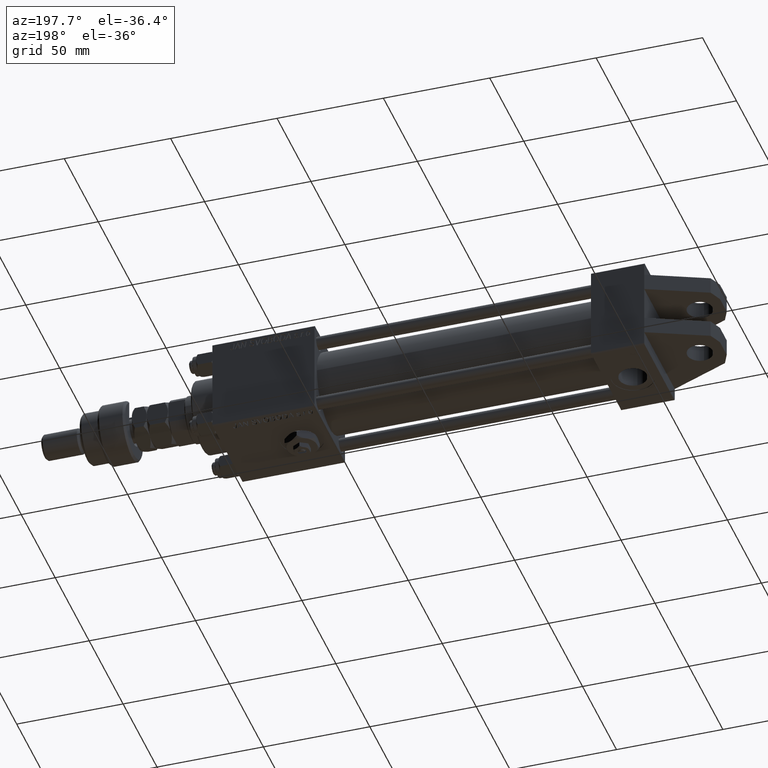
[diagram: clean part render]
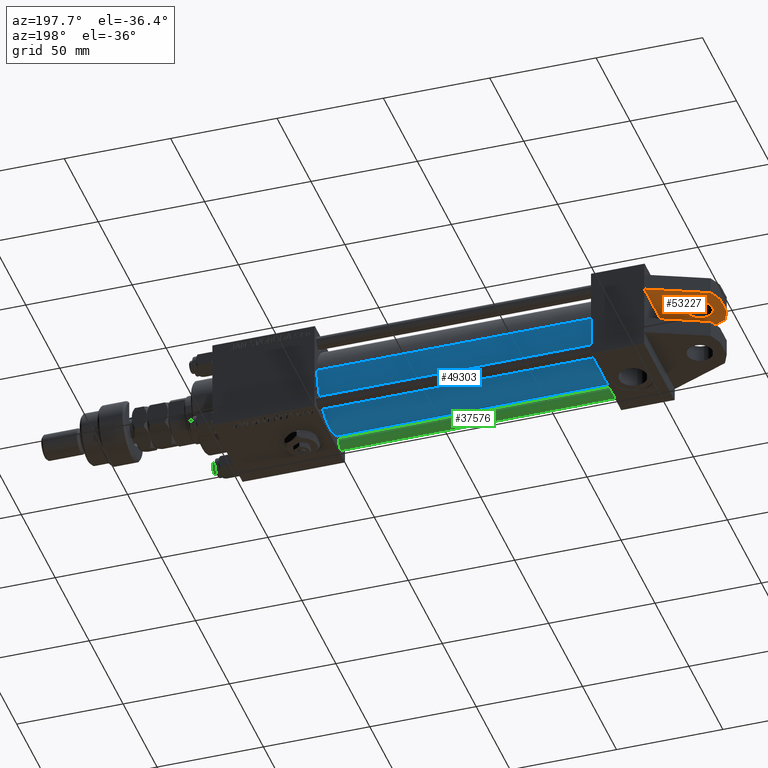
[diagram: same view with three faces highlighted in distinct colors, each labeled with its STEP entity id]
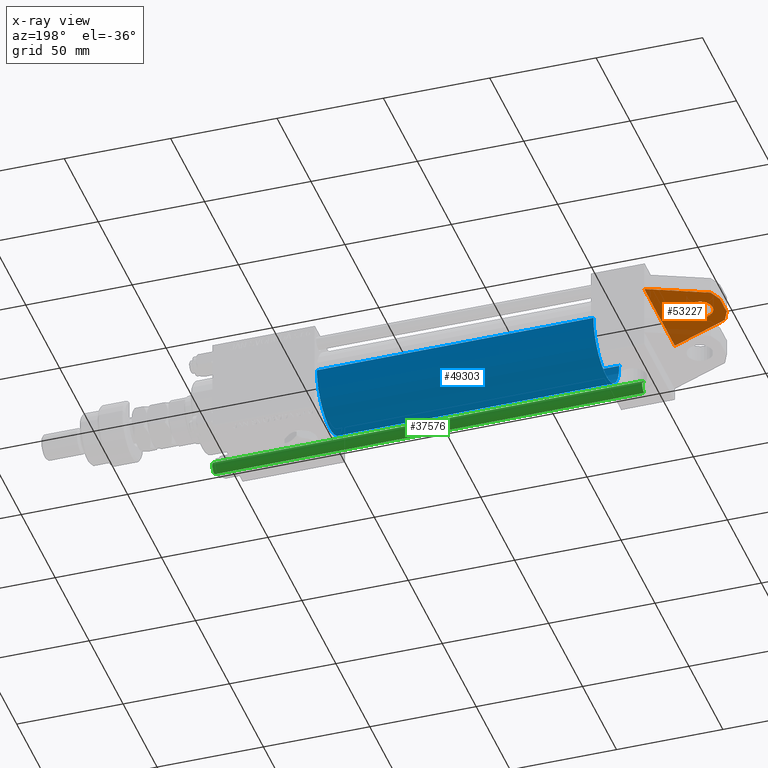
[diagram: x-ray of the same camera — body ghosted, the three highlighted faces saturated]
A machine part, auxiliary view with three faces highlighted in distinct colors.
The next image is the same camera in x-ray (body ghosted, the three faces saturated) — at least one of them is partly hidden behind the body in this view.
Their STEP definitions:

[orange] entity #53227 — the highlighted planar face has unit normal (0, 0, 1).
#643 = VERTEX_POINT ( 'NONE', #34201 ) ;
#2232 = EDGE_CURVE ( 'NONE', #52682, #36499, #18912, .T. ) ;
#2988 = EDGE_CURVE ( 'NONE', #39241, #23207, #52233, .T. ) ;
#3514 = DIRECTION ( 'NONE',  ( -0.9186825547302631678, 0.000000000000000000, 0.3949966628141013958 ) ) ;
#3778 = DIRECTION ( 'NONE',  ( 0.000000000000000000, 0.000000000000000000, 1.000000000000000000 ) ) ;
#4519 = EDGE_CURVE ( 'NONE', #52692, #52682, #32437, .T. ) ;
#4686 = AXIS2_PLACEMENT_3D ( 'NONE', #9974, #26803, #48013 ) ;
#6557 = VECTOR ( 'NONE', #3514, 1000.000000000000227 ) ;
#6929 = VECTOR ( 'NONE', #50143, 1000.000000000000000 ) ;
#7552 = CARTESIAN_POINT ( 'NONE',  ( -27.49177119113045720, -8.000000000000000000, 10.83363422253716735 ) ) ;
#7961 = CARTESIAN_POINT ( 'NONE',  ( -30.00000000000000000, -8.000000000000000000, 4.999999999999996447 ) ) ;
#7992 = EDGE_CURVE ( 'NONE', #29401, #643, #33167, .T. ) ;
#8341 = VERTEX_POINT ( 'NONE', #40846 ) ;
#8880 = FACE_OUTER_BOUND ( 'NONE', #45491, .T. ) ;
#9051 = DIRECTION ( 'NONE',  ( 0.000000000000000000, 0.000000000000000000, 1.000000000000000000 ) ) ;
#9974 = CARTESIAN_POINT ( 'NONE',  ( -19.00000000000000000, -8.000000000000000000, -3.469446951953614189E-15 ) ) ;
#10729 = CARTESIAN_POINT ( 'NONE',  ( 0.000000000000000000, -8.000000000000000000, -22.50000000000000711 ) ) ;
#11311 = CARTESIAN_POINT ( 'NONE',  ( -19.00000000000000000, -8.000000000000000000, -6.000000000000004441 ) ) ;
#11477 = EDGE_LOOP ( 'NONE', ( #53320, #29204 ) ) ;
#11628 = CARTESIAN_POINT ( 'NONE',  ( -30.00000000000000000, -8.000000000000000000, -5.000000000000003553 ) ) ;
#12560 = VECTOR ( 'NONE', #48419, 1000.000000000000000 ) ;
#12973 = DIRECTION ( 'NONE',  ( 0.000000000000000000, 0.000000000000000000, -1.000000000000000000 ) ) ;
#14685 = VECTOR ( 'NONE', #12973, 1000.000000000000000 ) ;
#15959 = ORIENTED_EDGE ( 'NONE', *, *, #7992, .T. ) ;
#16973 = CARTESIAN_POINT ( 'NONE',  ( -27.49177119113045720, -8.000000000000000000, 10.83363422253716735 ) ) ;
#17158 = CARTESIAN_POINT ( 'NONE',  ( 0.000000000000000000, -8.000000000000000000, 0.000000000000000000 ) ) ;
#17202 = ORIENTED_EDGE ( 'NONE', *, *, #4519, .T. ) ;
#17978 = ORIENTED_EDGE ( 'NONE', *, *, #2232, .T. ) ;
#18912 = LINE ( 'NONE', #27752, #12560 ) ;
#19846 = VECTOR ( 'NONE', #28242, 999.9999999999998863 ) ;
#20424 = AXIS2_PLACEMENT_3D ( 'NONE', #17158, #43051, #21826 ) ;
#21826 = DIRECTION ( 'NONE',  ( 0.000000000000000000, 0.000000000000000000, 1.000000000000000000 ) ) ;
#23207 = VERTEX_POINT ( 'NONE', #11311 ) ;
#23639 = ORIENTED_EDGE ( 'NONE', *, *, #42728, .T. ) ;
#25086 = AXIS2_PLACEMENT_3D ( 'NONE', #29732, #51502, #9051 ) ;
#26255 = PLANE ( 'NONE',  #20424 ) ;
#26803 = DIRECTION ( 'NONE',  ( -0.000000000000000000, 1.000000000000000000, -0.000000000000000000 ) ) ;
#27752 = CARTESIAN_POINT ( 'NONE',  ( -30.00000000000000000, -8.000000000000000000, -5.000000000000003553 ) ) ;
#28221 = EDGE_CURVE ( 'NONE', #36499, #8341, #32985, .T. ) ;
#28242 = DIRECTION ( 'NONE',  ( 0.9205433724492674274, 0.000000000000000000, 0.3906403709804319724 ) ) ;
#28921 = LINE ( 'NONE', #7961, #6929 ) ;
#29204 = ORIENTED_EDGE ( 'NONE', *, *, #29992, .F. ) ;
#29401 = VERTEX_POINT ( 'NONE', #16973 ) ;
#29732 = CARTESIAN_POINT ( 'NONE',  ( -19.00000000000000000, -8.000000000000000000, -3.469446951953614189E-15 ) ) ;
#29992 = EDGE_CURVE ( 'NONE', #23207, #39241, #49711, .T. ) ;
#30079 = ORIENTED_EDGE ( 'NONE', *, *, #35716, .T. ) ;
#30310 = CARTESIAN_POINT ( 'NONE',  ( 0.000000000000000000, -8.000000000000000000, 22.50000000000000000 ) ) ;
#32437 = LINE ( 'NONE', #48738, #6557 ) ;
#32985 = LINE ( 'NONE', #49822, #48772 ) ;
#33167 = LINE ( 'NONE', #7552, #19846 ) ;
#33952 = FACE_BOUND ( 'NONE', #11477, .T. ) ;
#34201 = CARTESIAN_POINT ( 'NONE',  ( 0.000000000000000000, -8.000000000000000000, 22.50000000000000000 ) ) ;
#35716 = EDGE_CURVE ( 'NONE', #643, #52692, #50735, .T. ) ;
#36499 = VERTEX_POINT ( 'NONE', #11628 ) ;
#39241 = VERTEX_POINT ( 'NONE', #40133 ) ;
#39670 = CARTESIAN_POINT ( 'NONE',  ( -27.31637403794659136, -8.000000000000000000, -10.75505444768274543 ) ) ;
#40133 = CARTESIAN_POINT ( 'NONE',  ( -19.00000000000000000, -8.000000000000000000, 5.999999999999997335 ) ) ;
#40846 = CARTESIAN_POINT ( 'NONE',  ( -30.00000000000000000, -8.000000000000000000, 4.999999999999996447 ) ) ;
#42728 = EDGE_CURVE ( 'NONE', #8341, #29401, #28921, .T. ) ;
#43051 = DIRECTION ( 'NONE',  ( 0.000000000000000000, -1.000000000000000000, 0.000000000000000000 ) ) ;
#45491 = EDGE_LOOP ( 'NONE', ( #23639, #15959, #30079, #17202, #17978, #50019 ) ) ;
#48013 = DIRECTION ( 'NONE',  ( 0.000000000000000000, 0.000000000000000000, 1.000000000000000000 ) ) ;
#48419 = DIRECTION ( 'NONE',  ( -0.4226182617406942232, 0.000000000000000000, 0.9063077870366523792 ) ) ;
#48738 = CARTESIAN_POINT ( 'NONE',  ( -27.31637403794659136, -8.000000000000000000, -10.75505444768274543 ) ) ;
#48772 = VECTOR ( 'NONE', #3778, 1000.000000000000000 ) ;
#49711 = CIRCLE ( 'NONE', #25086, 6.000000000000000888 ) ;
#49822 = CARTESIAN_POINT ( 'NONE',  ( -30.00000000000000000, -8.000000000000000000, -5.000000000000003553 ) ) ;
#50019 = ORIENTED_EDGE ( 'NONE', *, *, #28221, .T. ) ;
#50143 = DIRECTION ( 'NONE',  ( 0.3949966628141011737, 0.000000000000000000, 0.9186825547302632788 ) ) ;
#50735 = LINE ( 'NONE', #30310, #14685 ) ;
#51502 = DIRECTION ( 'NONE',  ( -0.000000000000000000, 1.000000000000000000, -0.000000000000000000 ) ) ;
#52233 = CIRCLE ( 'NONE', #4686, 6.000000000000000888 ) ;
#52682 = VERTEX_POINT ( 'NONE', #39670 ) ;
#52692 = VERTEX_POINT ( 'NONE', #10729 ) ;
#53227 = ADVANCED_FACE ( 'NONE', ( #33952, #8880 ), #26255, .F. ) ;
#53320 = ORIENTED_EDGE ( 'NONE', *, *, #2988, .F. ) ;

[blue] entity #49303 — the highlighted cylindrical surface (partial cylindrical patch) has radius 19 mm, axis along (-1, -0, 0).
#1587 = VERTEX_POINT ( 'NONE', #14924 ) ;
#2381 = DIRECTION ( 'NONE',  ( -1.000000000000000000, -0.000000000000000000, -0.000000000000000000 ) ) ;
#5983 = LINE ( 'NONE', #10108, #21320 ) ;
#7622 = CARTESIAN_POINT ( 'NONE',  ( 155.0000000000000000, -1.142618033573643218E-15, -19.00000000000000000 ) ) ;
#7842 = VERTEX_POINT ( 'NONE', #7622 ) ;
#9919 = AXIS2_PLACEMENT_3D ( 'NONE', #29912, #46724, #21913 ) ;
#10108 = CARTESIAN_POINT ( 'NONE',  ( 155.0000000000000000, -1.142618033573643218E-15, -19.00000000000000000 ) ) ;
#10392 = DIRECTION ( 'NONE',  ( 0.000000000000000000, 0.000000000000000000, 1.000000000000000000 ) ) ;
#14924 = CARTESIAN_POINT ( 'NONE',  ( 155.0000000000000000, -3.469446951953614189E-15, 19.00000000000000000 ) ) ;
#16509 = LINE ( 'NONE', #34304, #36714 ) ;
#16596 = ORIENTED_EDGE ( 'NONE', *, *, #26645, .T. ) ;
#19734 = FACE_OUTER_BOUND ( 'NONE', #52181, .T. ) ;
#20484 = CARTESIAN_POINT ( 'NONE',  ( 24.99999999999999289, -3.469446951953614189E-15, 19.00000000000000000 ) ) ;
#20874 = VERTEX_POINT ( 'NONE', #21264 ) ;
#21264 = CARTESIAN_POINT ( 'NONE',  ( 24.99999999999999289, -1.142618033573643218E-15, -19.00000000000000000 ) ) ;
#21320 = VECTOR ( 'NONE', #22786, 1000.000000000000000 ) ;
#21913 = DIRECTION ( 'NONE',  ( 0.000000000000000000, 0.000000000000000000, 1.000000000000000000 ) ) ;
#22096 = AXIS2_PLACEMENT_3D ( 'NONE', #48149, #2381, #10392 ) ;
#22786 = DIRECTION ( 'NONE',  ( -1.000000000000000000, -0.000000000000000000, -0.000000000000000000 ) ) ;
#23677 = DIRECTION ( 'NONE',  ( 0.000000000000000000, 0.000000000000000000, -1.000000000000000000 ) ) ;
#23875 = CYLINDRICAL_SURFACE ( 'NONE', #22096, 19.00000000000000000 ) ;
#25275 = ORIENTED_EDGE ( 'NONE', *, *, #35981, .F. ) ;
#25407 = EDGE_CURVE ( 'NONE', #7842, #20874, #5983, .T. ) ;
#26645 = EDGE_CURVE ( 'NONE', #20874, #35203, #43355, .T. ) ;
#28284 = ORIENTED_EDGE ( 'NONE', *, *, #34710, .F. ) ;
#29912 = CARTESIAN_POINT ( 'NONE',  ( 24.99999999999999289, -3.469446951953614189E-15, 0.000000000000000000 ) ) ;
#31389 = CIRCLE ( 'NONE', #54266, 19.00000000000000000 ) ;
#34304 = CARTESIAN_POINT ( 'NONE',  ( 155.0000000000000000, -3.469446951953614189E-15, 19.00000000000000000 ) ) ;
#34710 = EDGE_CURVE ( 'NONE', #7842, #1587, #31389, .T. ) ;
#35203 = VERTEX_POINT ( 'NONE', #20484 ) ;
#35981 = EDGE_CURVE ( 'NONE', #1587, #35203, #16509, .T. ) ;
#36714 = VECTOR ( 'NONE', #50142, 1000.000000000000000 ) ;
#39197 = CARTESIAN_POINT ( 'NONE',  ( 155.0000000000000000, -3.469446951953614189E-15, 0.000000000000000000 ) ) ;
#43355 = CIRCLE ( 'NONE', #9919, 19.00000000000000000 ) ;
#46724 = DIRECTION ( 'NONE',  ( 1.000000000000000000, -0.000000000000000000, 0.000000000000000000 ) ) ;
#48149 = CARTESIAN_POINT ( 'NONE',  ( 155.0000000000000000, -3.469446951953614189E-15, 0.000000000000000000 ) ) ;
#49303 = ADVANCED_FACE ( 'NONE', ( #19734 ), #23875, .T. ) ;
#50142 = DIRECTION ( 'NONE',  ( -1.000000000000000000, -0.000000000000000000, -0.000000000000000000 ) ) ;
#52181 = EDGE_LOOP ( 'NONE', ( #28284, #53542, #16596, #25275 ) ) ;
#52910 = DIRECTION ( 'NONE',  ( 1.000000000000000000, 0.000000000000000000, 0.000000000000000000 ) ) ;
#53542 = ORIENTED_EDGE ( 'NONE', *, *, #25407, .T. ) ;
#54266 = AXIS2_PLACEMENT_3D ( 'NONE', #39197, #52910, #23677 ) ;

[green] entity #37576 — the highlighted cylindrical surface (edge-blend (fillet) strip) has radius 3 mm, axis along (-1, -0, 0).
#394 = ORIENTED_EDGE ( 'NONE', *, *, #19238, .F. ) ;
#695 = CARTESIAN_POINT ( 'NONE',  ( 3.000000000000000444, 3.673940397442059868E-16, 0.5000000000001114664 ) ) ;
#2769 = CARTESIAN_POINT ( 'NONE',  ( 3.000000000000000444, 3.673940397442059868E-16, 203.0000000000000000 ) ) ;
#2966 = FACE_OUTER_BOUND ( 'NONE', #50338, .T. ) ;
#4428 = DIRECTION ( 'NONE',  ( 1.000000000000000000, 0.000000000000000000, 0.000000000000000000 ) ) ;
#4964 = CARTESIAN_POINT ( 'NONE',  ( -3.000000000000000444, 0.000000000000000000, 202.5000000000000853 ) ) ;
#6907 = DIRECTION ( 'NONE',  ( -0.000000000000000000, -0.000000000000000000, -1.000000000000000000 ) ) ;
#7907 = VERTEX_POINT ( 'NONE', #695 ) ;
#7947 = CARTESIAN_POINT ( 'NONE',  ( 3.000000000000000444, 3.673940397442059868E-16, 202.5000000000000853 ) ) ;
#10413 = CARTESIAN_POINT ( 'NONE',  ( 0.000000000000000000, 0.000000000000000000, 0.5000000000001114664 ) ) ;
#12324 = DIRECTION ( 'NONE',  ( -1.000000000000000000, 0.000000000000000000, 0.000000000000000000 ) ) ;
#12362 = VECTOR ( 'NONE', #38903, 1000.000000000000000 ) ;
#17113 = DIRECTION ( 'NONE',  ( 0.000000000000000000, 0.000000000000000000, -1.000000000000000000 ) ) ;
#17382 = CARTESIAN_POINT ( 'NONE',  ( 0.000000000000000000, 0.000000000000000000, 202.5000000000000853 ) ) ;
#18223 = LINE ( 'NONE', #44133, #12362 ) ;
#19171 = ORIENTED_EDGE ( 'NONE', *, *, #21651, .T. ) ;
#19209 = DIRECTION ( 'NONE',  ( 1.000000000000000000, 0.000000000000000000, 0.000000000000000000 ) ) ;
#19238 = EDGE_CURVE ( 'NONE', #34832, #7907, #23714, .T. ) ;
#19549 = CARTESIAN_POINT ( 'NONE',  ( -3.000000000000000444, 0.000000000000000000, 0.5000000000001114664 ) ) ;
#21651 = EDGE_CURVE ( 'NONE', #45466, #45596, #18223, .T. ) ;
#22105 = ORIENTED_EDGE ( 'NONE', *, *, #28840, .T. ) ;
#23143 = AXIS2_PLACEMENT_3D ( 'NONE', #10413, #27235, #19209 ) ;
#23714 = LINE ( 'NONE', #2769, #47459 ) ;
#26452 = EDGE_CURVE ( 'NONE', #45596, #7907, #53100, .T. ) ;
#27235 = DIRECTION ( 'NONE',  ( -0.000000000000000000, -0.000000000000000000, 1.000000000000000000 ) ) ;
#28840 = EDGE_CURVE ( 'NONE', #34832, #45466, #54036, .T. ) ;
#32170 = DIRECTION ( 'NONE',  ( -0.000000000000000000, -0.000000000000000000, -1.000000000000000000 ) ) ;
#32881 = AXIS2_PLACEMENT_3D ( 'NONE', #17382, #17113, #4428 ) ;
#34832 = VERTEX_POINT ( 'NONE', #7947 ) ;
#36861 = CYLINDRICAL_SURFACE ( 'NONE', #47208, 3.000000000000000444 ) ;
#37576 = ADVANCED_FACE ( 'NONE', ( #2966 ), #36861, .T. ) ;
#38903 = DIRECTION ( 'NONE',  ( -0.000000000000000000, -0.000000000000000000, -1.000000000000000000 ) ) ;
#41265 = CARTESIAN_POINT ( 'NONE',  ( 0.000000000000000000, 0.000000000000000000, 203.0000000000000000 ) ) ;
#41431 = ORIENTED_EDGE ( 'NONE', *, *, #26452, .T. ) ;
#44133 = CARTESIAN_POINT ( 'NONE',  ( -3.000000000000000444, 0.000000000000000000, 203.0000000000000000 ) ) ;
#45466 = VERTEX_POINT ( 'NONE', #4964 ) ;
#45596 = VERTEX_POINT ( 'NONE', #19549 ) ;
#47208 = AXIS2_PLACEMENT_3D ( 'NONE', #41265, #32170, #12324 ) ;
#47459 = VECTOR ( 'NONE', #6907, 1000.000000000000000 ) ;
#50338 = EDGE_LOOP ( 'NONE', ( #394, #22105, #19171, #41431 ) ) ;
#53100 = CIRCLE ( 'NONE', #23143, 3.000000000000000444 ) ;
#54036 = CIRCLE ( 'NONE', #32881, 3.000000000000000444 ) ;